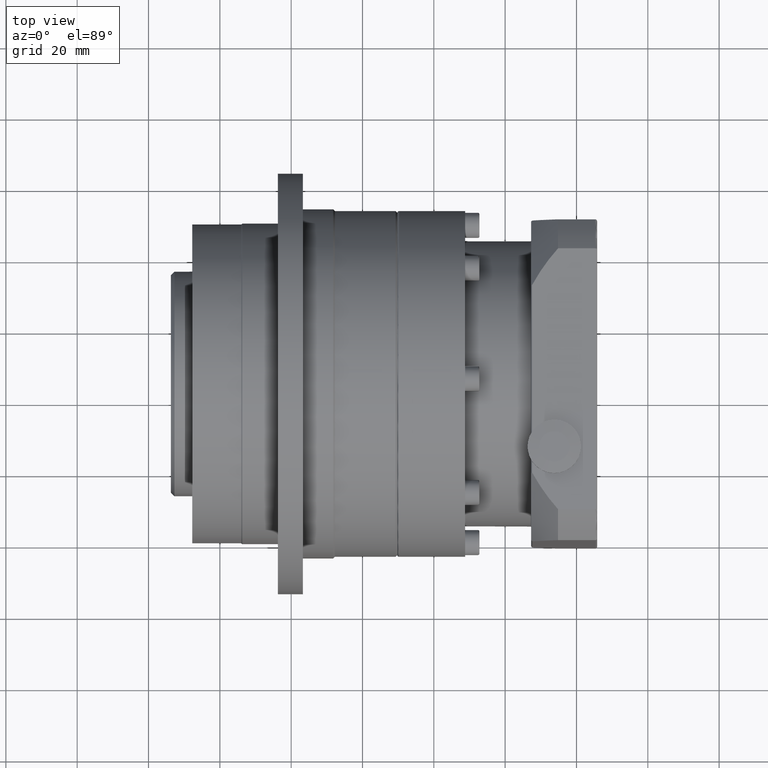
[diagram: clean part render]
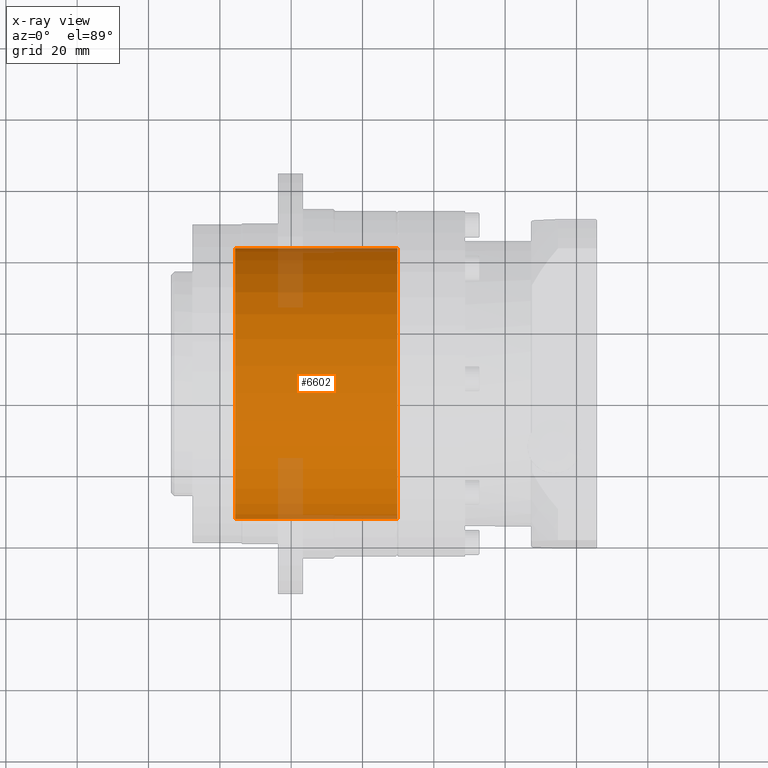
[diagram: x-ray — body ghosted, one internal face saturated and labeled with its STEP entity id]
A machine part, top view, then the same camera in x-ray: the body is ghosted and one INTERNAL B-rep face — a face not visible from any outside direction — is saturated and labeled: STEP entity #6602.
In plain terms, the highlighted cylindrical surface (bore or boss wall) has radius 38.075 mm, axis along (-1, -0, 0).
Its self-contained STEP definition (entity closure, byte-faithful):
#1127=FACE_BOUND('',#1961,.T.);
#1464=FACE_OUTER_BOUND('',#1960,.T.);
#1960=EDGE_LOOP('',(#4784));
#1961=EDGE_LOOP('',(#4785));
#2676=CIRCLE('',#7155,38.075);
#2677=CIRCLE('',#7157,38.075);
#3106=VERTEX_POINT('',#10323);
#3107=VERTEX_POINT('',#10326);
#3784=EDGE_CURVE('',#3106,#3106,#2676,.T.);
#3785=EDGE_CURVE('',#3107,#3107,#2677,.T.);
#4784=ORIENTED_EDGE('',*,*,#3785,.T.);
#4785=ORIENTED_EDGE('',*,*,#3784,.F.);
#6043=CYLINDRICAL_SURFACE('',#7176,38.075);
#6602=ADVANCED_FACE('',(#1464,#1127),#6043,.F.);
#7155=AXIS2_PLACEMENT_3D('',#10324,#8208,#8209);
#7157=AXIS2_PLACEMENT_3D('',#10327,#8212,#8213);
#7176=AXIS2_PLACEMENT_3D('',#10355,#8250,#8251);
#8208=DIRECTION('center_axis',(-1.,-5.0633159996887E-15,5.29528915366341E-15));
#8209=DIRECTION('ref_axis',(5.21713403870543E-15,0.0153129377686141,0.999882750094677));
#8212=DIRECTION('center_axis',(-1.,-1.67583822375971E-22,2.03038510467757E-15));
#8213=DIRECTION('ref_axis',(5.21713403870543E-15,0.0153129377686141,0.999882750094677));
#8250=DIRECTION('center_axis',(-1.,-5.0633159996887E-15,5.29528915366341E-15));
#8251=DIRECTION('ref_axis',(5.21713403870543E-15,0.0153129377686141,0.999882750094677));
#10323=CARTESIAN_POINT('',(29.7802383984012,-95.6550886632963,-49.5041215897331));
#10324=CARTESIAN_POINT('Origin',(29.7802383984014,-95.0720485577563,-11.4335858798783));
#10326=CARTESIAN_POINT('',(-15.7197616015979,-95.6550886632965,-49.5041215897329));
#10327=CARTESIAN_POINT('Origin',(-15.7197616015977,-95.0720485577566,-11.4335858798781));
#10355=CARTESIAN_POINT('Origin',(29.7802383984014,-95.0720485577563,-11.4335858798783));